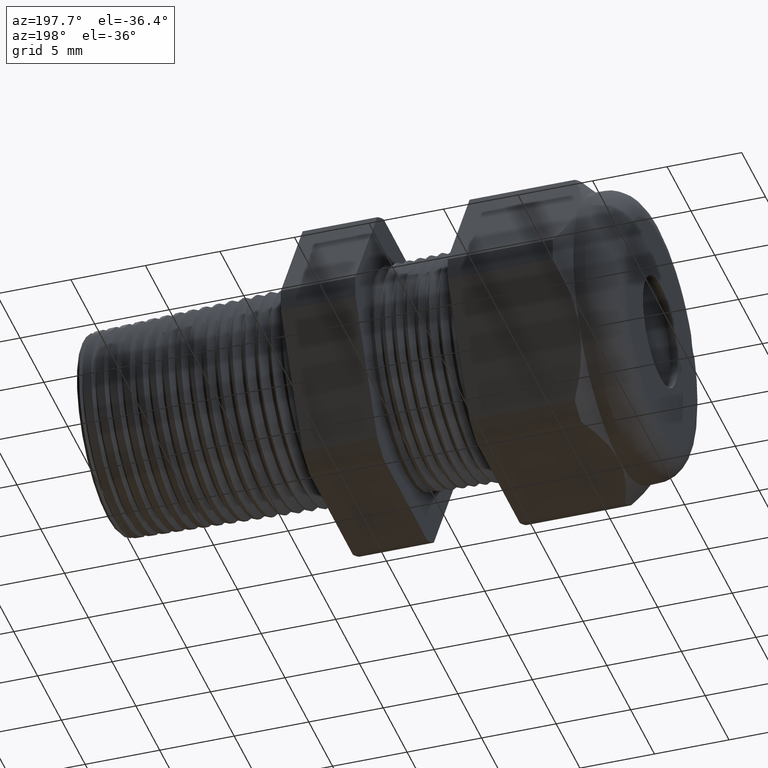
[diagram: clean part render]
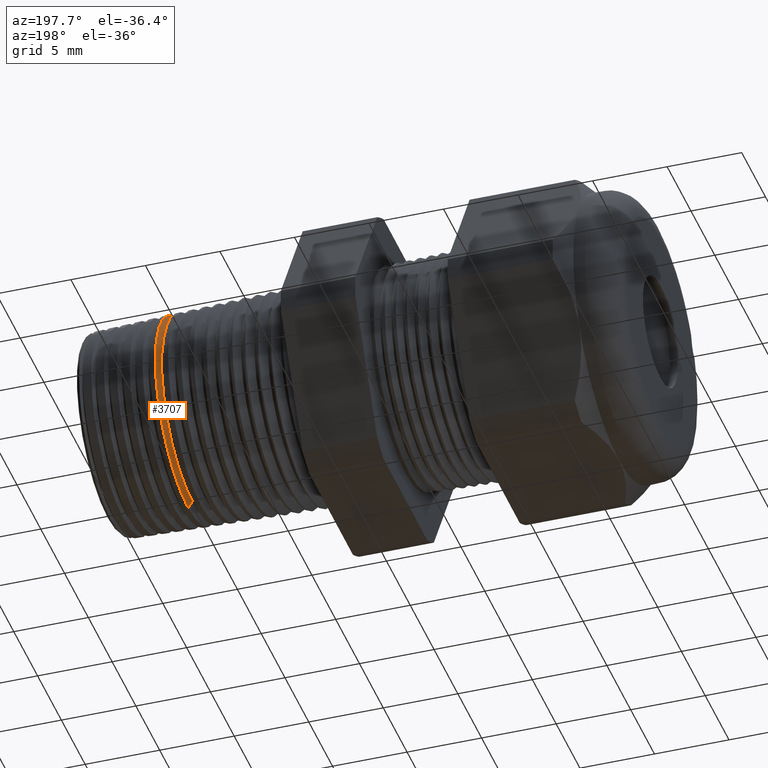
[diagram: same view with one face highlighted and labeled with its STEP entity id]
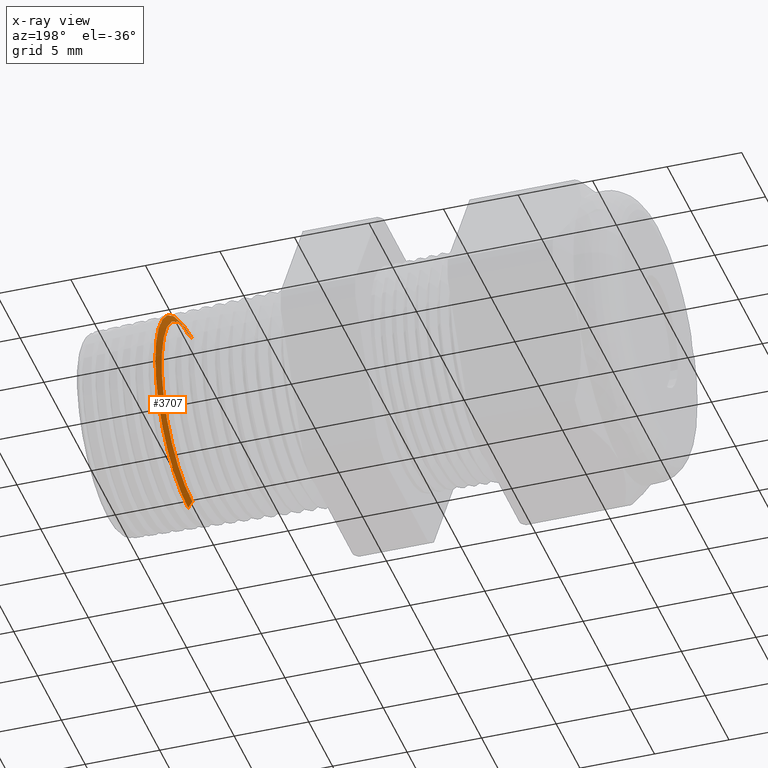
[diagram: x-ray of the same camera — body ghosted, the highlighted face saturated]
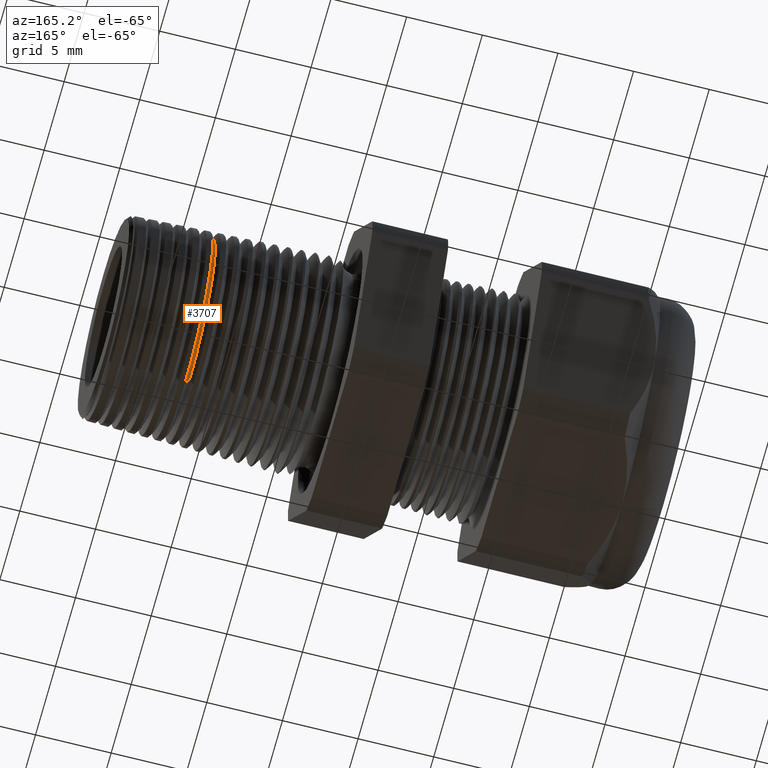
[diagram: same view with one face highlighted and labeled with its STEP entity id]
A machine part, auxiliary view. The second image highlights one B-rep face of the part: STEP entity #3707.
The next image is the same camera in x-ray: the body ghosted, the highlighted face saturated — about 1% of this face is hidden behind the body in this view.
A second angle (auxiliary view) of the same face is appended — the face is thin or edge-on in the first view.
In plain terms, the highlighted conical surface has half-angle 58 deg.
Its self-contained STEP definition (entity closure, byte-faithful):
#828 = DIRECTION ( 'NONE',  ( 0.5299192642331905800, 0.0000000000000000000, -0.8480480961564349500 ) ) ;
#829 = VECTOR ( 'NONE', #828, 39.37007874015748100 ) ;
#830 = CARTESIAN_POINT ( 'NONE',  ( 0.05626297198907897300, 0.0000000000000000000, -0.2540184132628080000 ) ) ;
#831 = LINE ( 'NONE', #830, #829 ) ;
#832 = CARTESIAN_POINT ( 'NONE',  ( 0.06714568676934686000, 3.324112660712042500E-017, -0.2714343974953773400 ) ) ;
#833 = DIRECTION ( 'NONE',  ( 0.0000000000000000000, 0.0000000000000000000, -1.000000000000000000 ) ) ;
#834 = DIRECTION ( 'NONE',  ( -1.000000000000000000, 0.0000000000000000000, 0.0000000000000000000 ) ) ;
#835 = CARTESIAN_POINT ( 'NONE',  ( 0.06714568676934686000, 0.0000000000000000000, 0.0000000000000000000 ) ) ;
#836 = AXIS2_PLACEMENT_3D ( 'NONE', #835, #834, #833 ) ;
#837 = DIRECTION ( 'NONE',  ( 0.0000000000000000000, 0.0000000000000000000, -1.000000000000000000 ) ) ;
#838 = DIRECTION ( 'NONE',  ( 1.000000000000000000, 0.0000000000000000000, 0.0000000000000000000 ) ) ;
#839 = CARTESIAN_POINT ( 'NONE',  ( 0.05626297198907897300, 0.0000000000000000000, 0.0000000000000000000 ) ) ;
#840 = AXIS2_PLACEMENT_3D ( 'NONE', #839, #838, #837 ) ;
#841 = CIRCLE ( 'NONE', #836, 0.2714343974953773400 ) ;
#842 = CONICAL_SURFACE ( 'NONE', #840, 0.2540184132628080000, 1.012290966156728100 ) ;
#843 = FACE_OUTER_BOUND ( 'NONE', #3765, .T. ) ;
#1021 = CARTESIAN_POINT ( 'NONE',  ( 0.06714568676934686000, 0.0000000000000000000, 0.2714343974953773400 ) ) ;
#1022 = DIRECTION ( 'NONE',  ( 0.5299192642331905800, 1.038559386480984900E-016, 0.8480480961564349500 ) ) ;
#1023 = VECTOR ( 'NONE', #1022, 39.37007874015748100 ) ;
#1024 = CARTESIAN_POINT ( 'NONE',  ( 0.05626297198907897300, 3.110828367267874100E-017, 0.2540184132628080000 ) ) ;
#1025 = LINE ( 'NONE', #1024, #1023 ) ;
#1026 = CARTESIAN_POINT ( 'NONE',  ( 0.05626297198907897300, 0.0000000000000000000, 0.2540184132628080000 ) ) ;
#1027 = CARTESIAN_POINT ( 'NONE',  ( 0.05626297198907897300, 3.221859129759208100E-017, -0.2540184132628080000 ) ) ;
#1028 = DIRECTION ( 'NONE',  ( 0.0000000000000000000, 0.0000000000000000000, -1.000000000000000000 ) ) ;
#1029 = DIRECTION ( 'NONE',  ( 1.000000000000000000, 0.0000000000000000000, 0.0000000000000000000 ) ) ;
#1030 = CARTESIAN_POINT ( 'NONE',  ( 0.05626297198907897300, 0.0000000000000000000, 0.0000000000000000000 ) ) ;
#1031 = AXIS2_PLACEMENT_3D ( 'NONE', #1030, #1029, #1028 ) ;
#1032 = CIRCLE ( 'NONE', #1031, 0.2540184132628080000 ) ;
#3707 = ADVANCED_FACE ( 'NONE', ( #843 ), #842, .T. ) ;
#3708 = ORIENTED_EDGE ( 'NONE', *, *, #3808, .T. ) ;
#3710 = ORIENTED_EDGE ( 'NONE', *, *, #3711, .T. ) ;
#3711 = EDGE_CURVE ( 'NONE', #3813, #3712, #841, .T. ) ;
#3712 = VERTEX_POINT ( 'NONE', #832 ) ;
#3713 = ORIENTED_EDGE ( 'NONE', *, *, #3714, .F. ) ;
#3714 = EDGE_CURVE ( 'NONE', #3809, #3712, #831, .T. ) ;
#3765 = EDGE_LOOP ( 'NONE', ( #3708, #3811, #3710, #3713 ) ) ;
#3808 = EDGE_CURVE ( 'NONE', #3809, #3810, #1032, .T. ) ;
#3809 = VERTEX_POINT ( 'NONE', #1027 ) ;
#3810 = VERTEX_POINT ( 'NONE', #1026 ) ;
#3811 = ORIENTED_EDGE ( 'NONE', *, *, #3812, .T. ) ;
#3812 = EDGE_CURVE ( 'NONE', #3810, #3813, #1025, .T. ) ;
#3813 = VERTEX_POINT ( 'NONE', #1021 ) ;